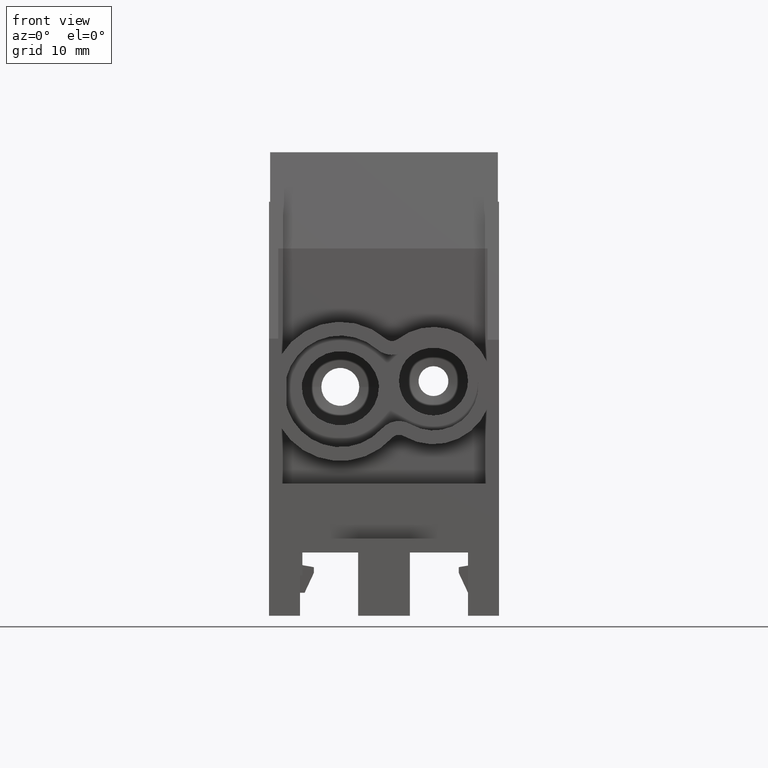
[diagram: clean part render]
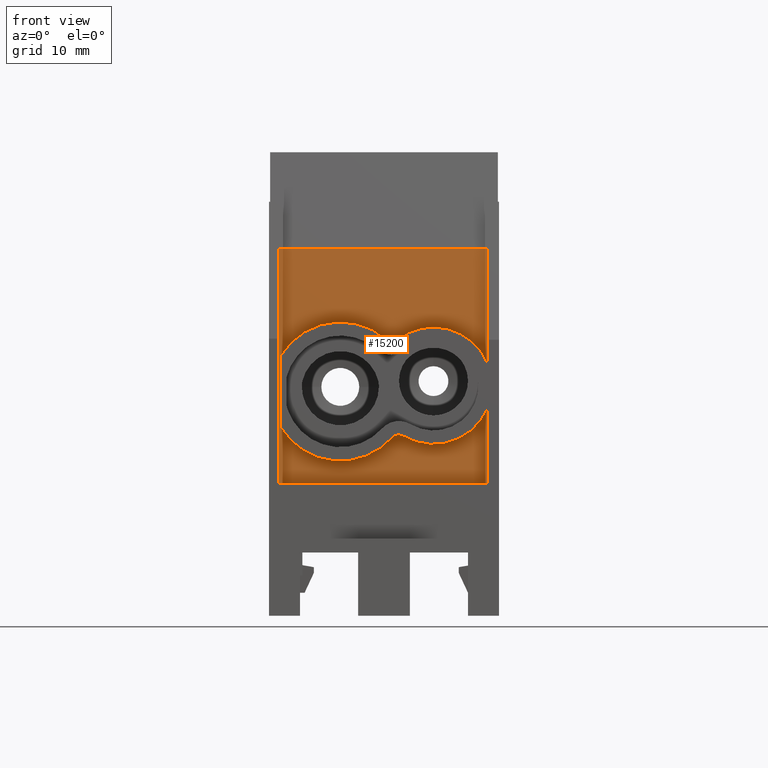
[diagram: same view with one face highlighted and labeled with its STEP entity id]
A machine part, front view. The second image highlights one B-rep face of the part: STEP entity #15200.
In plain terms, the highlighted planar face has unit normal (0, 1, 0).
Its self-contained STEP definition (entity closure, byte-faithful):
#2050=CARTESIAN_POINT('',(5.17037876036414E-16,-17.15,-9.31412634341613)
);
#2060=DIRECTION('',(-1.,4.93038065763132E-32,-5.55111512312577E-17));
#2070=VECTOR('',#2060,1.);
#2080=LINE('',#2050,#2070);
#2090=CARTESIAN_POINT('',(9.,-17.15,-9.31412634341613));
#2100=VERTEX_POINT('',#2090);
#2110=CARTESIAN_POINT('',(-9.2,-17.15,-9.31412634341613));
#2120=VERTEX_POINT('',#2110);
#2130=EDGE_CURVE('',#2100,#2120,#2080,.T.);
#14240=CARTESIAN_POINT('',(-9.9,-17.15,-9.445359338705));
#14250=DIRECTION('',(3.24619032168768E-32,1.,3.03396758775072E-16));
#14260=DIRECTION('',(5.55111512312577E-17,3.03396758775072E-16,-1.));
#14270=AXIS2_PLACEMENT_3D('',#14240,#14250,#14260);
#14280=PLANE('',#14270);
#14290=CARTESIAN_POINT('',(4.29999999999999,-17.15,-21.245359338705));
#14300=DIRECTION('',(-2.77555756156289E-16,-1.,-5.80952514931361E-16));
#14310=DIRECTION('',(0.92156862745098,-4.81321441162652E-16,
0.388215487710261));
#14320=AXIS2_PLACEMENT_3D('',#14290,#14300,#14310);
#14330=CIRCLE('',#14320,5.1);
#14340=CARTESIAN_POINT('',(9.,-17.15,-19.2654603513827));
#14350=VERTEX_POINT('',#14340);
#14360=CARTESIAN_POINT('',(1.1829455211495,-17.15,-17.2087801711575));
#14370=VERTEX_POINT('',#14360);
#14380=EDGE_CURVE('',#14350,#14370,#14330,.T.);
#14390=ORIENTED_EDGE('',*,*,#14380,.F.);
#14400=CARTESIAN_POINT('',(0.693995798976877,-17.15,-16.5755912821305));
#14410=DIRECTION('',(2.77555756156289E-16,1.,5.80952514931361E-16));
#14420=DIRECTION('',(0.611187152715782,2.90177334558537E-16,
-0.791486111283815));
#14430=AXIS2_PLACEMENT_3D('',#14400,#14410,#14420);
#14440=CIRCLE('',#14430,0.8);
#14450=CARTESIAN_POINT('',(0.169149574278847,-17.15,-17.1793598142852));
#14460=VERTEX_POINT('',#14450);
#14470=EDGE_CURVE('',#14370,#14460,#14440,.T.);
#14480=ORIENTED_EDGE('',*,*,#14470,.F.);
#14490=CARTESIAN_POINT('',(-3.80000000000001,-17.15,-21.745359338705));
#14500=DIRECTION('',(-2.77555756156289E-16,-1.,-5.80952514931361E-16));
#14510=DIRECTION('',(0.656057780872538,-6.20543672441896E-16,
0.754710665193358));
#14520=AXIS2_PLACEMENT_3D('',#14490,#14500,#14510);
#14530=CIRCLE('',#14520,6.05);
#14540=CARTESIAN_POINT('',(-9.00000000000001,-17.15,-18.6530301194918));
#14550=VERTEX_POINT('',#14540);
#14560=EDGE_CURVE('',#14460,#14550,#14530,.T.);
#14570=ORIENTED_EDGE('',*,*,#14560,.F.);
#14580=CARTESIAN_POINT('',(-9.00000000000001,-17.15,1.4025725835272E-15)
);
#14590=DIRECTION('',(5.55111512312577E-17,3.03396758775072E-16,-1.));
#14600=VECTOR('',#14590,1.);
#14610=LINE('',#14580,#14600);
#14620=CARTESIAN_POINT('',(-9.00000000000001,-17.15,-24.8376885579182));
#14630=VERTEX_POINT('',#14620);
#14640=EDGE_CURVE('',#14550,#14630,#14610,.T.);
#14650=ORIENTED_EDGE('',*,*,#14640,.F.);
#14660=CARTESIAN_POINT('',(-3.80000000000001,-17.15,-21.745359338705));
#14670=DIRECTION('',(-2.77555756156289E-16,-1.,-5.80952514931361E-16));
#14680=DIRECTION('',(-0.859504132231405,5.35501879158739E-16,
-0.511128796564173));
#14690=AXIS2_PLACEMENT_3D('',#14660,#14670,#14680);
#14700=CIRCLE('',#14690,6.05);
#14710=CARTESIAN_POINT('',(0.700580205324412,-17.15,-25.7885360372234));
#14720=VERTEX_POINT('',#14710);
#14730=EDGE_CURVE('',#14630,#14720,#14700,.T.);
#14740=ORIENTED_EDGE('',*,*,#14730,.F.);
#14750=CARTESIAN_POINT('',(1.29569824900367,-17.15,-26.3231709725647));
#14760=DIRECTION('',(2.77555756156289E-16,1.,5.80952514931361E-16));
#14770=DIRECTION('',(-8.88178419700124E-16,-5.80952514931361E-16,1.));
#14780=AXIS2_PLACEMENT_3D('',#14750,#14760,#14770);
#14790=CIRCLE('',#14780,0.8);
#14800=CARTESIAN_POINT('',(1.70306119829131,-17.15,-25.6346541408549));
#14810=VERTEX_POINT('',#14800);
#14820=EDGE_CURVE('',#14720,#14810,#14790,.T.);
#14830=ORIENTED_EDGE('',*,*,#14820,.F.);
#14840=CARTESIAN_POINT('',(4.29999999999999,-17.15,-21.245359338705));
#14850=DIRECTION('',(-2.77555756156289E-16,-1.,-5.80952514931361E-16));
#14860=DIRECTION('',(2.29663782545008E-16,5.80952514931361E-16,-1.));
#14870=AXIS2_PLACEMENT_3D('',#14840,#14850,#14860);
#14880=CIRCLE('',#14870,5.1);
#14890=CARTESIAN_POINT('',(9.,-17.15,-23.2252583260273));
#14900=VERTEX_POINT('',#14890);
#14910=EDGE_CURVE('',#14810,#14900,#14880,.T.);
#14920=ORIENTED_EDGE('',*,*,#14910,.F.);
#14930=CARTESIAN_POINT('',(9.,-17.15,2.40177330568984E-15));
#14940=DIRECTION('',(-5.55111512312577E-17,-3.03396758775072E-16,1.));
#14950=VECTOR('',#14940,1.);
#14960=LINE('',#14930,#14950);
#14970=CARTESIAN_POINT('',(9.,-17.15,-29.745359338705));
#14980=VERTEX_POINT('',#14970);
#14990=EDGE_CURVE('',#14980,#14900,#14960,.T.);
#15000=ORIENTED_EDGE('',*,*,#14990,.T.);
#15010=CARTESIAN_POINT('',(1.65119914067896E-15,-17.15,-29.745359338705)
);
#15020=DIRECTION('',(-1.,4.93038065763132E-32,-5.55111512312577E-17));
#15030=VECTOR('',#15020,1.);
#15040=LINE('',#15010,#15030);
#15050=CARTESIAN_POINT('',(-9.2,-17.15,-29.745359338705));
#15060=VERTEX_POINT('',#15050);
#15070=EDGE_CURVE('',#14980,#15060,#15040,.T.);
#15080=ORIENTED_EDGE('',*,*,#15070,.F.);
#15090=CARTESIAN_POINT('',(-9.20000000000001,-17.15,1.39147035328095E-15
));
#15100=DIRECTION('',(-1.66378813762246E-16,-3.03396758775072E-16,1.));
#15110=VECTOR('',#15100,1.);
#15120=LINE('',#15090,#15110);
#15130=EDGE_CURVE('',#15060,#2120,#15120,.T.);
#15140=ORIENTED_EDGE('',*,*,#15130,.F.);
#15150=ORIENTED_EDGE('',*,*,#2130,.T.);
#15160=EDGE_CURVE('',#14350,#2100,#14960,.T.);
#15170=ORIENTED_EDGE('',*,*,#15160,.T.);
#15180=EDGE_LOOP('',(#15170,#15150,#15140,#15080,#15000,#14920,#14830,
#14740,#14650,#14570,#14480,#14390));
#15190=FACE_OUTER_BOUND('',#15180,.T.);
#15200=ADVANCED_FACE('',(#15190),#14280,.F.);